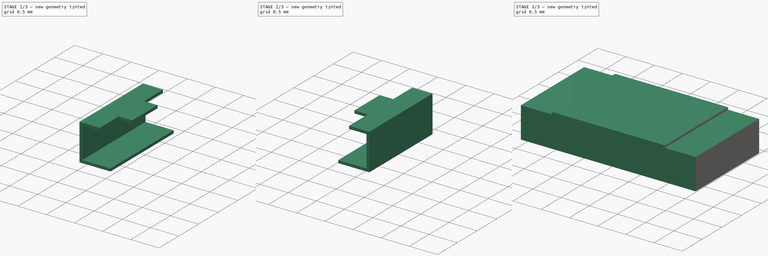
[diagram: build sequence overview — one tinted view per stage of 3, left to right]
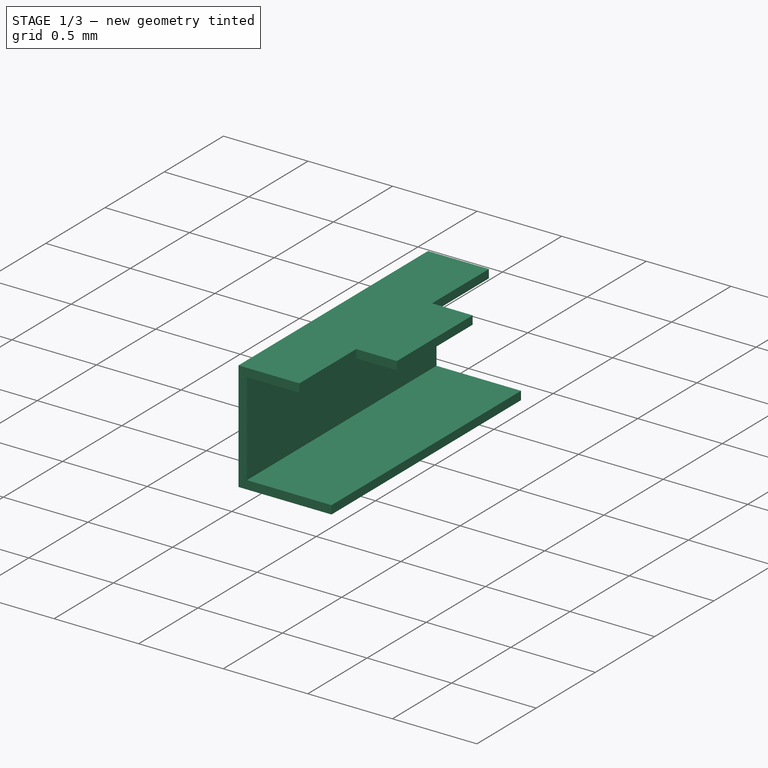
[diagram: stage 1 of 3 — iso view after this stage's code; geometry added in this stage tinted green]
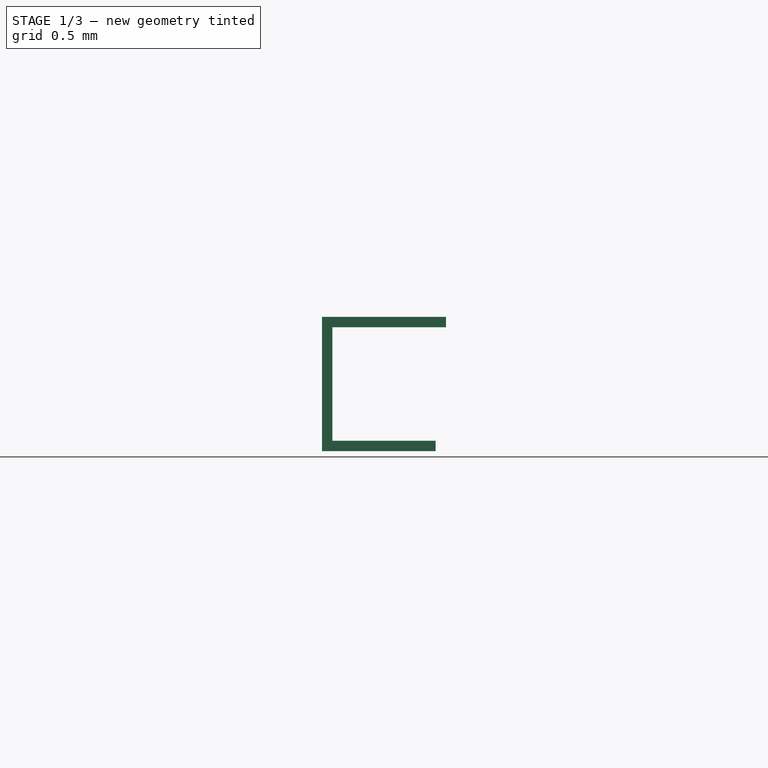
[diagram: stage 1 of 3 — front view after this stage's code; geometry added in this stage tinted green]
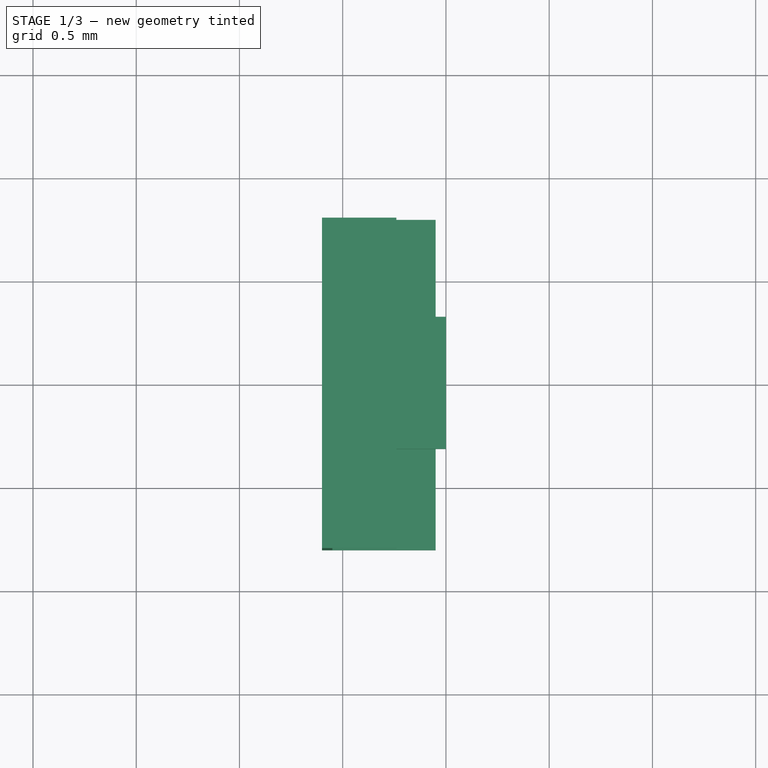
[diagram: stage 1 of 3 — top view after this stage's code; geometry added in this stage tinted green]
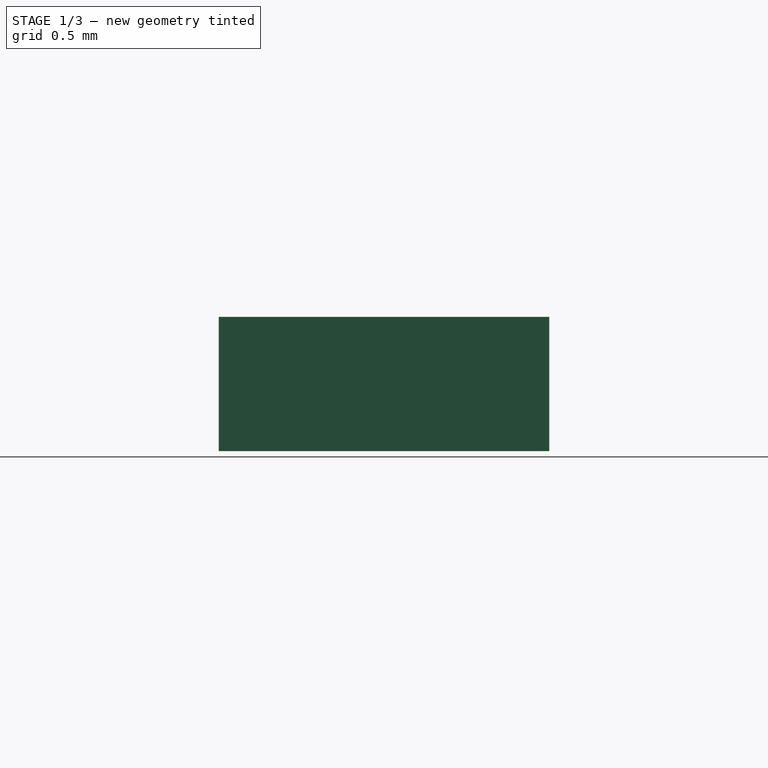
[diagram: stage 1 of 3 — right view after this stage's code; geometry added in this stage tinted green]
FCSTD DOCUMENT  (FreeCAD 0.19R23323 (Git))
Label: R_1206
License: All rights reserved
LicenseURL: http://en.wikipedia.org/wiki/All_rights_reserved
objects: Sketcher::SketchObject×4, PartDesign::ShapeBinder×4, PartDesign::Pad×3, PartDesign::Body×3, Spreadsheet::Sheet×1, PartDesign::Pocket×1, Part::Mirroring×1, PartDesign::Plane×1
note: 21 computed .brp shape members not serialized (recipe doc carries the construction recipe); baked Part::Feature solids carry a one-line shape summary decoded from their .brp

FEATURE [Sketcher::SketchObject] Sketch
  MapMode = 5
  Placement = pos=(0,0,0) rot=(1,0,0;1.5708rad)
  Support = -> [XZ_Plane]
  expr: Constraints[26] = Spreadsheet.Length / 2
  expr: Constraints[24] = Spreadsheet.Height
  expr: Constraints[23] = Spreadsheet.Bottom
  expr: Constraints[22] = Spreadsheet.Top
  sketch-geometry (9):
    g0: LineSegment StartX=-1 StartY=0.65 StartZ=0 EndX=-1.6 EndY=0.65 EndZ=0
    g1: LineSegment StartX=-1.6 StartY=0.65 StartZ=0 EndX=-1.6 EndY=0 EndZ=0
    g2: LineSegment StartX=-1.6 StartY=0 StartZ=0 EndX=-1.05 EndY=0 EndZ=0
    g3: LineSegment StartX=-1.05 StartY=0.05 StartZ=0 EndX=-1.55 EndY=0.05 EndZ=0
    g4: LineSegment StartX=-1.55 StartY=0.05 StartZ=0 EndX=-1.55 EndY=0.6 EndZ=0
    g5: LineSegment StartX=-1.55 StartY=0.6 StartZ=0 EndX=-1 EndY=0.6 EndZ=0
    g6: LineSegment StartX=-1.55 StartY=0.05 StartZ=0 EndX=-1.6 EndY=0.05 EndZ=0
    g7: LineSegment StartX=-1.05 StartY=0.05 StartZ=0 EndX=-1.05 EndY=0 EndZ=0
    g8: LineSegment StartX=-1 StartY=0.6 StartZ=0 EndX=-1 EndY=0.65 EndZ=0
  constraints (27):
    c: Horizontal(g0)
    c: Coincident(g0,g1)
    c: Vertical(g1)
    c: Coincident(g1,g2)
    c: Horizontal(g2)
    c: Horizontal(g3)
    c: Coincident(g3,g4)
    c: Vertical(g4)
    c: Coincident(g4,g5)
    c: Horizontal(g5)
    c: Coincident(g6,g3)
    c: PointOnObject(g6,g1)
    c: Horizontal(g6)
    c: Coincident(g7,g3)
    c: Coincident(g7,g2)
    c: Coincident(g8,g5)
    c: Coincident(g8,g0)
    c: Vertical(g8)
    c: Vertical(g7)
    c: Equal(g7,g6)
    c: Equal(g6,g8)
    c: DistanceY(g7,g7) = 0.05
    c: DistanceX(g0,g0) = 0.6
    c: DistanceX(g2,g2) = 0.55
    c: DistanceY(g1,g1) = 0.65
    c: PointOnObject(g2,g-1)
    c: DistanceX(g1,g-1) = 1.6
FEATURE [Spreadsheet::Sheet] Spreadsheet
  cells = A1=Resistor Length; B1(Length)=3.2; A2=Resistor Width; B2(Width)=1.6; A3=Resistor Height; B3(Height)=0.65; A4=Contact Top; B4(Top)=0.6; A5=Contact Bottom; B5(Bottom)=0.55
FEATURE [PartDesign::Pad] Pad
  Direction = (1,1,1)
  Length = 1.6
  Length2 = 100
  Midplane = true
  Placement = pos=(0,0,0) rot=(1,0,0;1.5708rad)
  Profile = -> Sketch
  Type = 0
  expr: Length = Spreadsheet.Width
FEATURE [Sketcher::SketchObject] Sketch001
  ExternalGeometry = -> [Pad]
  MapMode = 5
  Placement = pos=(0,4e-16,0.65) rot=(0,0,1;3.14159rad)
  Support = -> [Pad]
  expr: Constraints[21] = Spreadsheet.Top * 0.4
  expr: Constraints[19] = Spreadsheet.Width * 0.3
  sketch-geometry (8):
    g0: LineSegment StartX=1 StartY=-0.8 StartZ=0 EndX=1.24 EndY=-0.8 EndZ=0
    g1: LineSegment StartX=1.24 StartY=-0.8 StartZ=0 EndX=1.24 EndY=-0.32 EndZ=0
    g2: LineSegment StartX=1.24 StartY=-0.32 StartZ=0 EndX=1 EndY=-0.32 EndZ=0
    g3: LineSegment StartX=1 StartY=-0.32 StartZ=0 EndX=1 EndY=-0.8 EndZ=0
    g4: LineSegment StartX=1 StartY=0.8 StartZ=0 EndX=1.24 EndY=0.8 EndZ=0
    g5: LineSegment StartX=1.24 StartY=0.8 StartZ=0 EndX=1.24 EndY=0.32 EndZ=0
    g6: LineSegment StartX=1.24 StartY=0.32 StartZ=0 EndX=1 EndY=0.32 EndZ=0
    g7: LineSegment StartX=1 StartY=0.32 StartZ=0 EndX=1 EndY=0.8 EndZ=0
  constraints (22):
    c: Coincident(g0,g1)
    c: Coincident(g1,g2)
    c: Coincident(g2,g3)
    c: Coincident(g3,g0)
    c: Horizontal(g0)
    c: Horizontal(g2)
    c: Vertical(g1)
    c: Vertical(g3)
    c: Coincident(g0,g-3)
    c: Coincident(g4,g5)
    c: Coincident(g5,g6)
    c: Coincident(g6,g7)
    c: Coincident(g7,g4)
    c: Horizontal(g4)
    c: Horizontal(g6)
    c: Vertical(g5)
    c: Vertical(g7)
    c: Coincident(g4,g-3)
    c: Equal(g5,g1)
    c: DistanceY(g1,g1) = 0.48
    c: Equal(g6,g2)
    c: DistanceX(g2,g2) = 0.24
FEATURE [PartDesign::Pocket] Pocket
  BaseFeature = -> Pad
  Length = 5
  Length2 = 100
  Placement = pos=(0,0,0) rot=(1,0,0;1.5708rad)
  Profile = -> Sketch001
  Type = 2
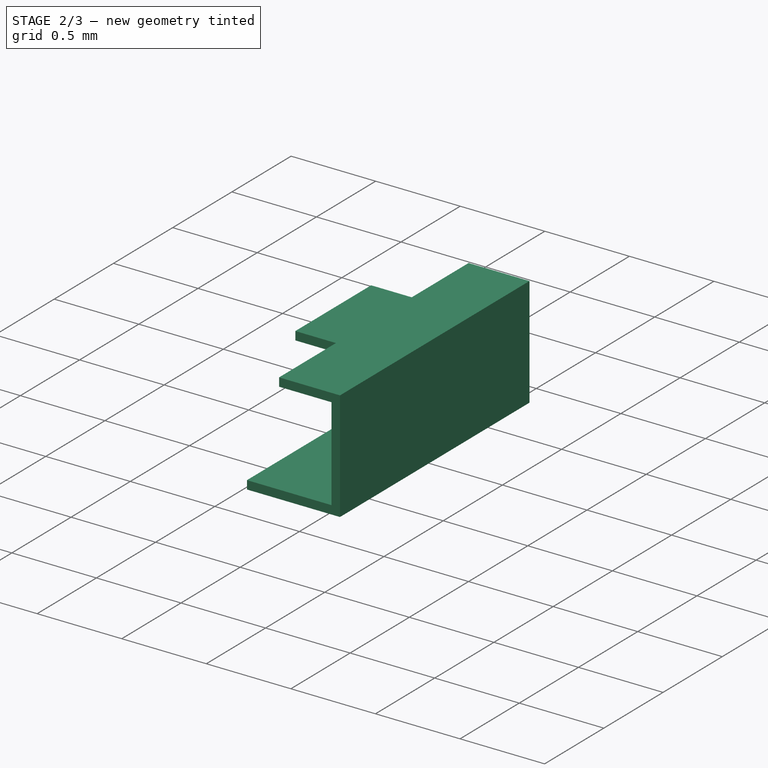
[diagram: stage 2 of 3 — iso view after this stage's code; geometry added in this stage tinted green]
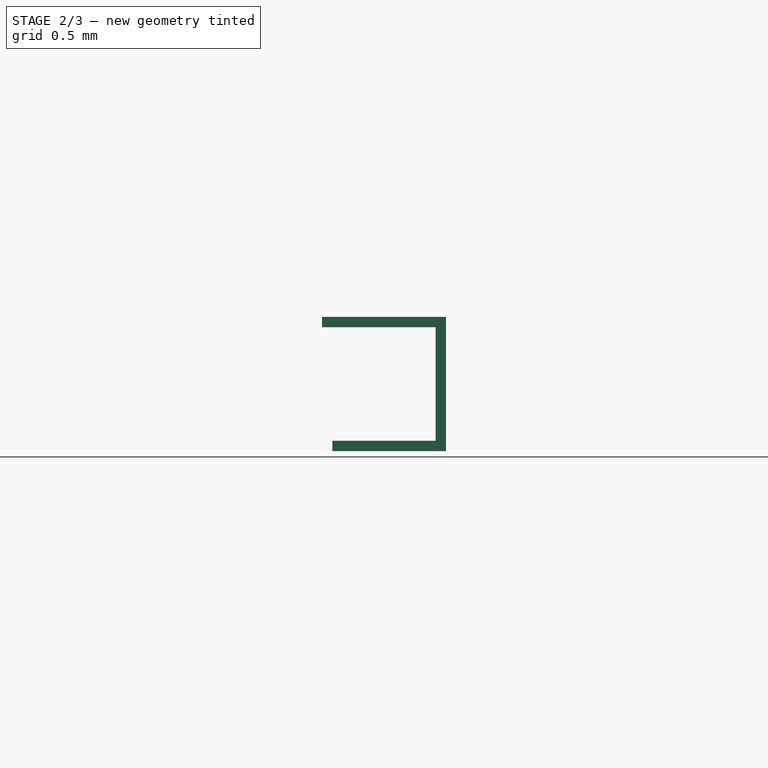
[diagram: stage 2 of 3 — front view after this stage's code; geometry added in this stage tinted green]
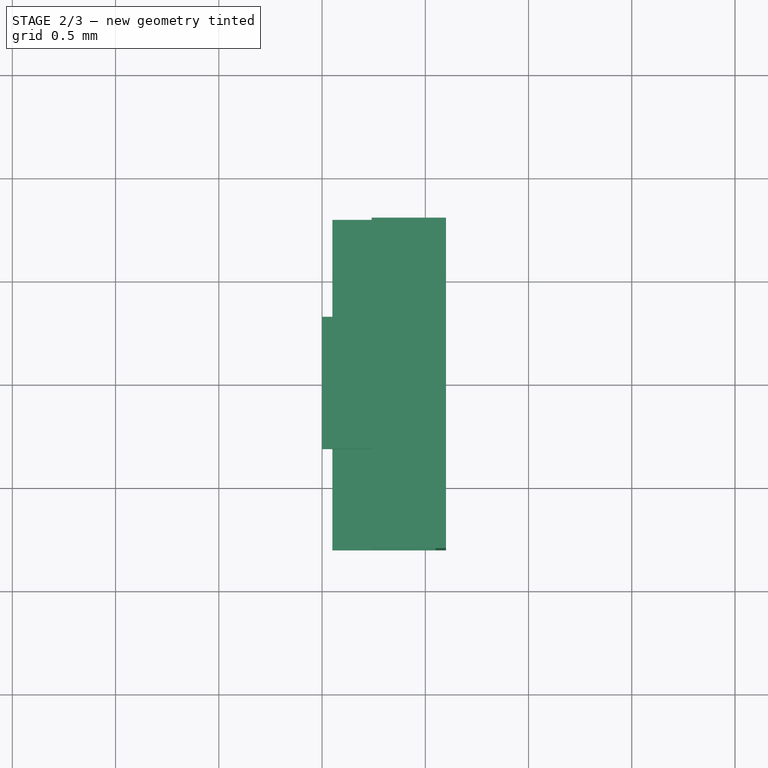
[diagram: stage 2 of 3 — top view after this stage's code; geometry added in this stage tinted green]
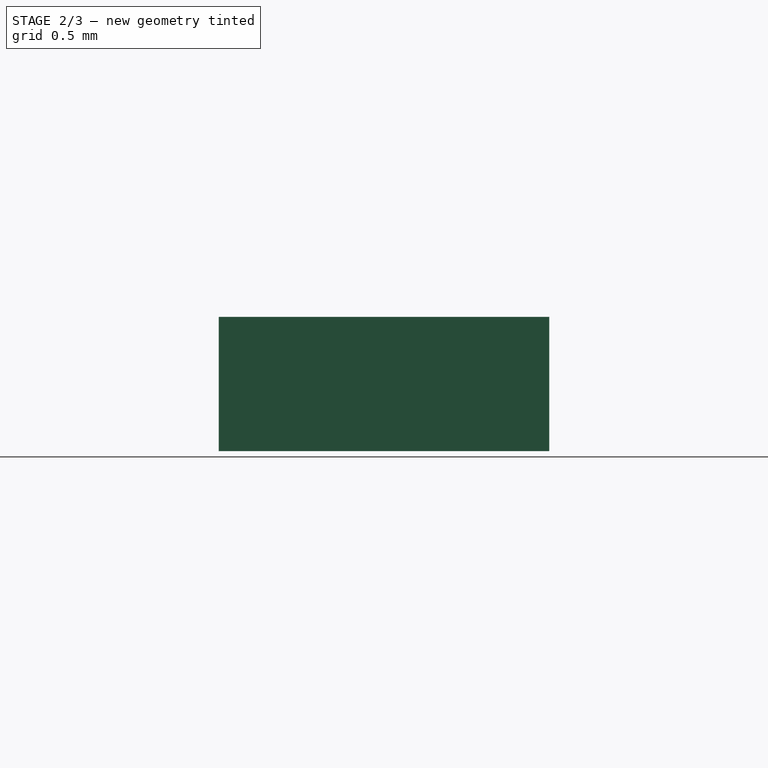
[diagram: stage 2 of 3 — right view after this stage's code; geometry added in this stage tinted green]
FEATURE [PartDesign::Body] Body  label="Connection"
  Group = -> [Sketch,Pad,Sketch001,Pocket]
  Origin = -> Origin
  Tip = -> Pocket
FEATURE [Part::Mirroring] mirror  label="Connection (mirrored)"
  Base = (0,0,0)
  Normal = (1,0,0)
  Source = -> Body
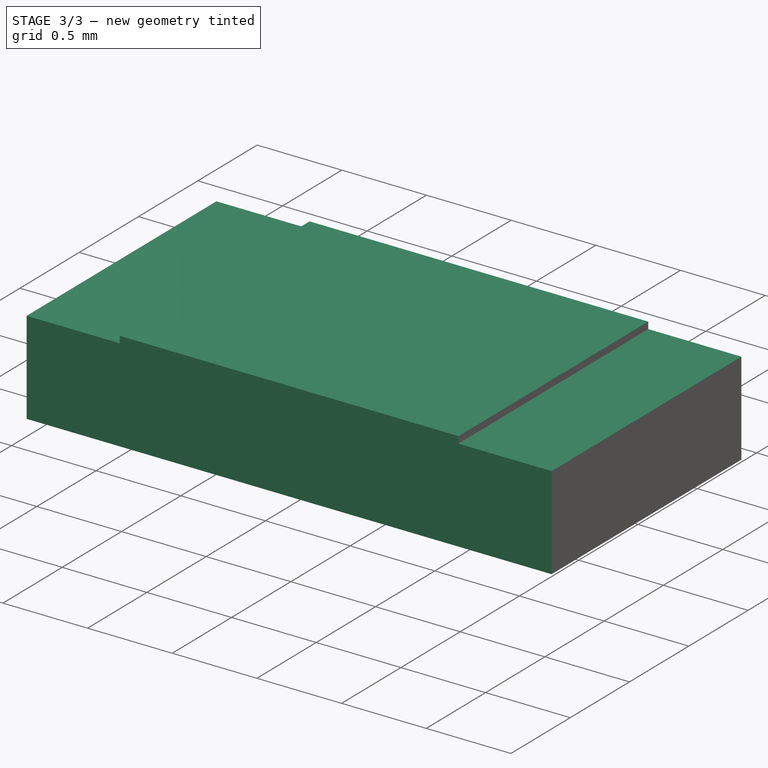
[diagram: stage 3 of 3 — iso view after this stage's code; geometry added in this stage tinted green]
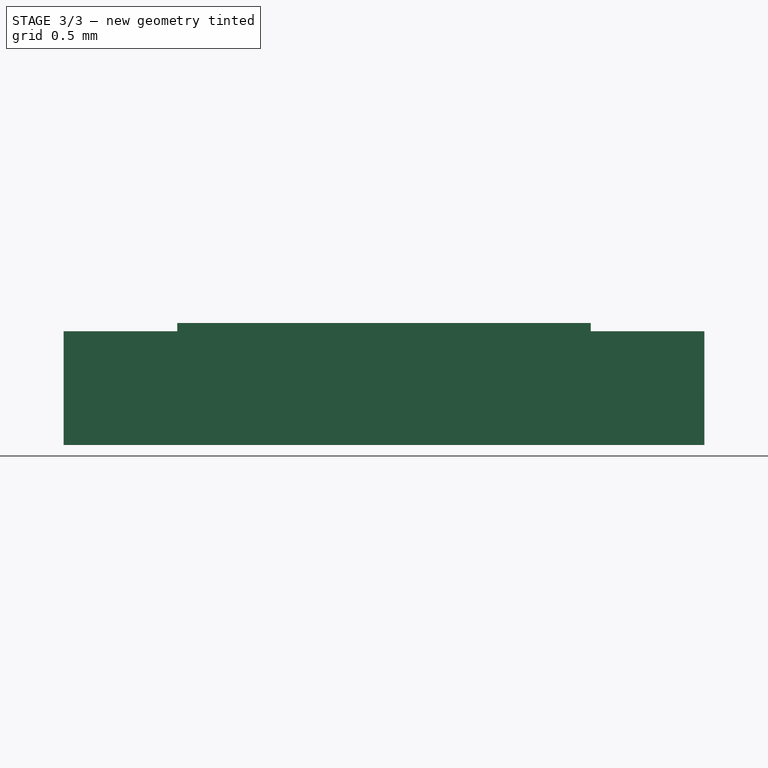
[diagram: stage 3 of 3 — front view after this stage's code; geometry added in this stage tinted green]
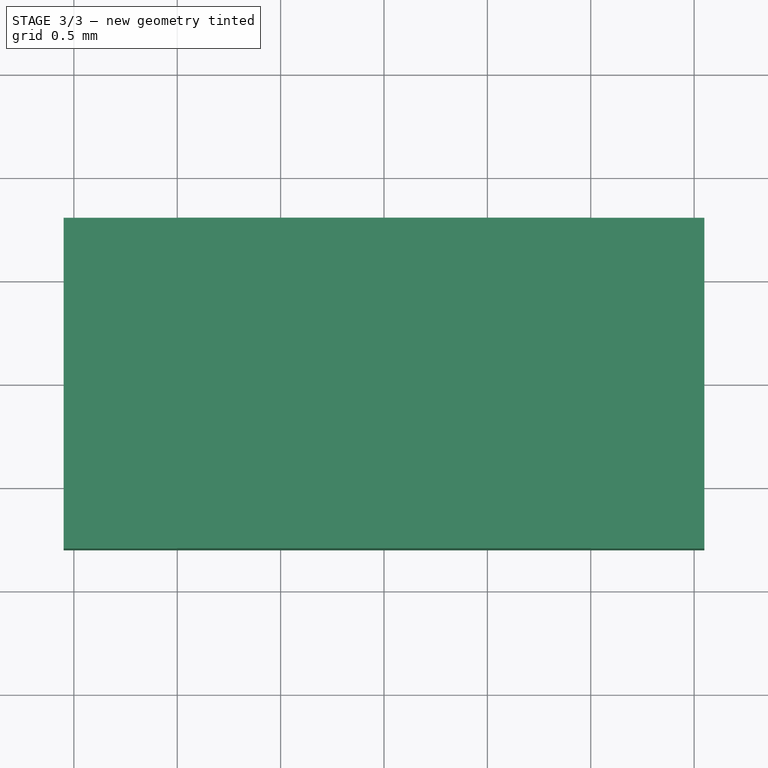
[diagram: stage 3 of 3 — top view after this stage's code; geometry added in this stage tinted green]
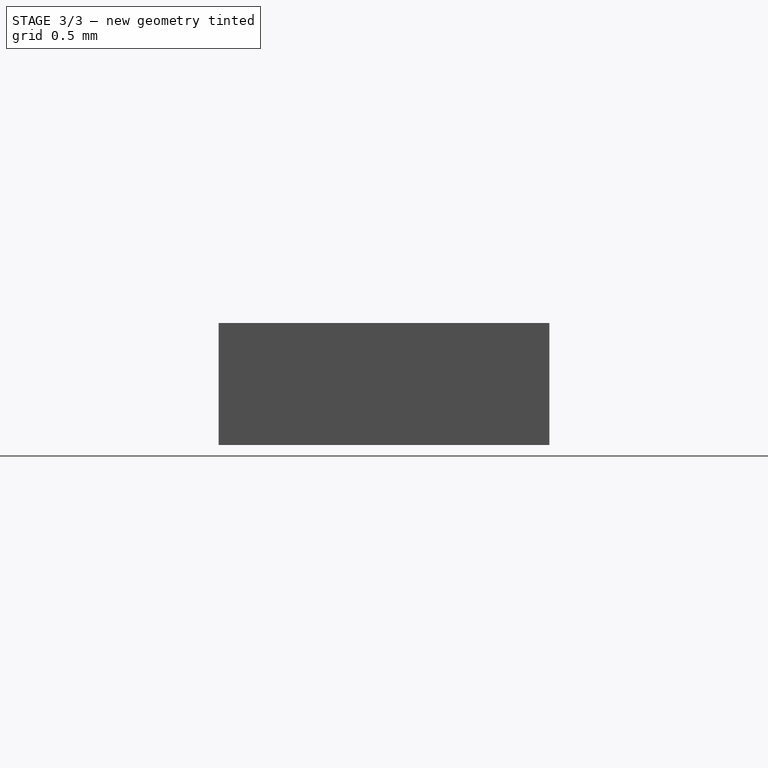
[diagram: stage 3 of 3 — right view after this stage's code; geometry added in this stage tinted green]
FEATURE [PartDesign::ShapeBinder] ShapeBinder
  Placement = pos=(0,-0.8,9e-16) rot=(1,0,0;1.5708rad)
  Support = -> [Pocket]
  TraceSupport = false
FEATURE [PartDesign::ShapeBinder] ShapeBinder001
  Placement = pos=(0,7e-16,0.8) rot=(-1,0,0;0rad)
  Support = -> [mirror]
  TraceSupport = false
FEATURE [Sketcher::SketchObject] Sketch002
  ExternalGeometry = -> [ShapeBinder,ShapeBinder001]
  MapMode = 5
  Placement = pos=(0,0,0) rot=(1,0,0;1.5708rad)
  Support = -> [XZ_Plane001]
  sketch-geometry (4):
    g0: LineSegment StartX=-1.55 StartY=0.6 StartZ=0 EndX=1.55 EndY=0.6 EndZ=0
    g1: LineSegment StartX=1.55 StartY=0.6 StartZ=0 EndX=1.55 EndY=0.05 EndZ=0
    g2: LineSegment StartX=1.55 StartY=0.05 StartZ=0 EndX=-1.55 EndY=0.05 EndZ=0
    g3: LineSegment StartX=-1.55 StartY=0.05 StartZ=0 EndX=-1.55 EndY=0.6 EndZ=0
  constraints (10):
    c: Coincident(g0,g1)
    c: Coincident(g1,g2)
    c: Coincident(g2,g3)
    c: Coincident(g3,g0)
    c: Horizontal(g0)
    c: Horizontal(g2)
    c: Vertical(g1)
    c: Vertical(g3)
    c: Coincident(g0,g-3)
    c: Coincident(g1,g-4)
FEATURE [PartDesign::Pad] Pad001
  Direction = (1,1,1)
  Length = 1.6
  Length2 = 100
  Midplane = true
  Placement = pos=(0,0,0) rot=(1,0,0;1.5708rad)
  Profile = -> Sketch002
  Type = 0
  expr: Length = Spreadsheet.Width
FEATURE [PartDesign::Body] Body001  label="Substrate"
  Group = -> [ShapeBinder,ShapeBinder001,Sketch002,Pad001]
  Origin = -> Origin001
  Tip = -> Pad001
FEATURE [PartDesign::ShapeBinder] ShapeBinder002
  Placement = pos=(0,0,0) rot=(1,0,0;1.5708rad)
  Support = -> [Pocket]
  TraceSupport = false
FEATURE [PartDesign::ShapeBinder] ShapeBinder003
  Placement = pos=(0,0,0) rot=(-1,0,0;0rad)
  Support = -> [mirror]
  TraceSupport = false
FEATURE [PartDesign::Plane] DatumPlane
  Length = 60
  MapMode = 13
  Placement = pos=(-0.333333,0.106667,0.6) rot=(0,0,1;0rad)
  ResizeMode = 0
  Support = -> [ShapeBinder002,ShapeBinder003]
  Width = 60
FEATURE [Sketcher::SketchObject] Sketch003
  ExternalGeometry = -> [ShapeBinder002,ShapeBinder003]
  MapMode = 5
  Placement = pos=(-0.333333,0.106667,0.6) rot=(0,0,1;0rad)
  Support = -> [DatumPlane]
  expr: Constraints[9] = Spreadsheet.Width
  sketch-geometry (5):
    g0: LineSegment StartX=-0.666667 StartY=-0.906667 StartZ=0 EndX=-0.666667 EndY=0.693333 EndZ=0
    g1: LineSegment StartX=-0.666667 StartY=0.693333 StartZ=0 EndX=1.33333 EndY=0.693333 EndZ=0
    g2: LineSegment StartX=1.33333 StartY=0.693333 StartZ=0 EndX=1.33333 EndY=-0.906667 EndZ=0
    g3: LineSegment StartX=1.33333 StartY=-0.906667 StartZ=0 EndX=-0.666667 EndY=-0.906667 EndZ=0
    g4: GeomPoint X=-0.666667 Y=-0.106667 Z=0
  constraints (12):
    c: Vertical(g0)
    c: Coincident(g0,g1)
    c: Horizontal(g1)
    c: Coincident(g1,g2)
    c: Vertical(g2)
    c: Coincident(g2,g3)
    c: Coincident(g3,g0)
    c: Horizontal(g3)
    c: PointOnObject(g-4,g2)
    c: DistanceY(g2,g2) = 1.6
    c: Symmetric(g-3,g-3,g4)
    c: Symmetric(g0,g0,g4)
FEATURE [PartDesign::Pad] Pad002
  Direction = (1,1,1)
  Length = 0.04
  Length2 = 100
  Placement = pos=(-0.333333,0.106667,0.6) rot=(0,0,1;0rad)
  Profile = -> Sketch003
  Type = 0
FEATURE [PartDesign::Body] Body002  label="Overcoat"
  Group = -> [ShapeBinder002,ShapeBinder003,DatumPlane,Sketch003,Pad002]
  Origin = -> Origin002
  Tip = -> Pad002
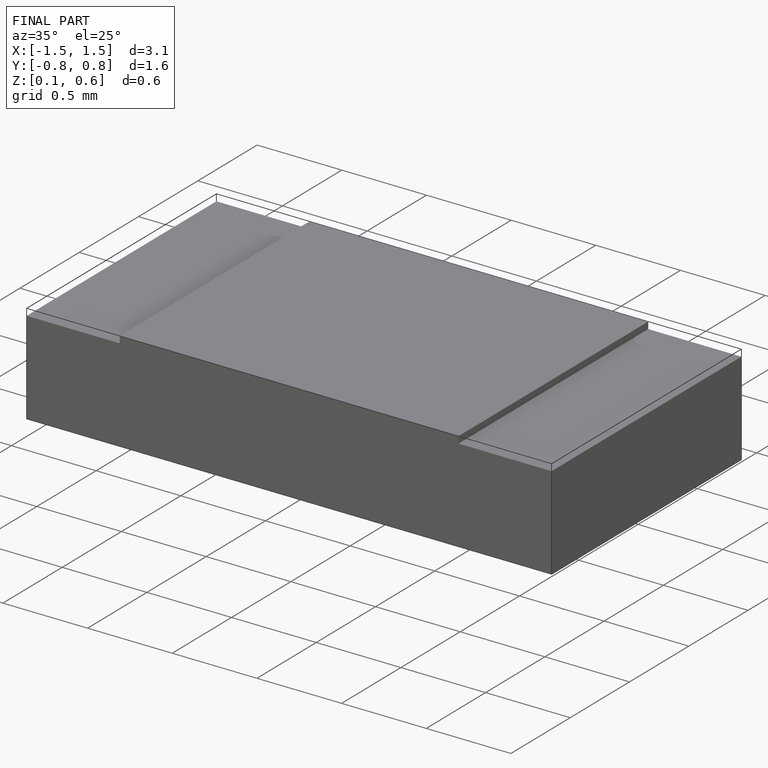
[diagram: finished part — iso view with bounding-box wireframe]
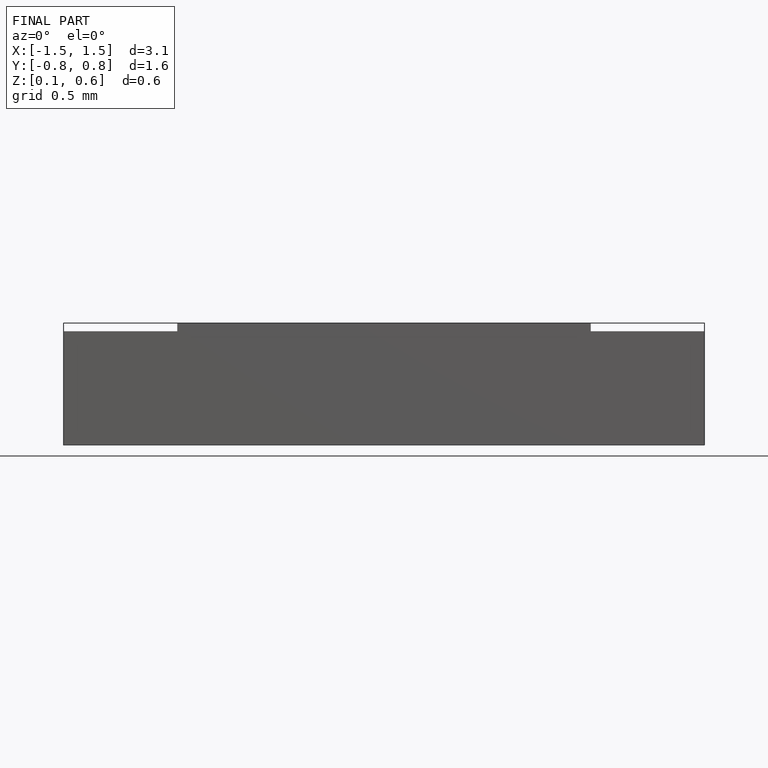
[diagram: finished part — front view with bounding-box wireframe]
